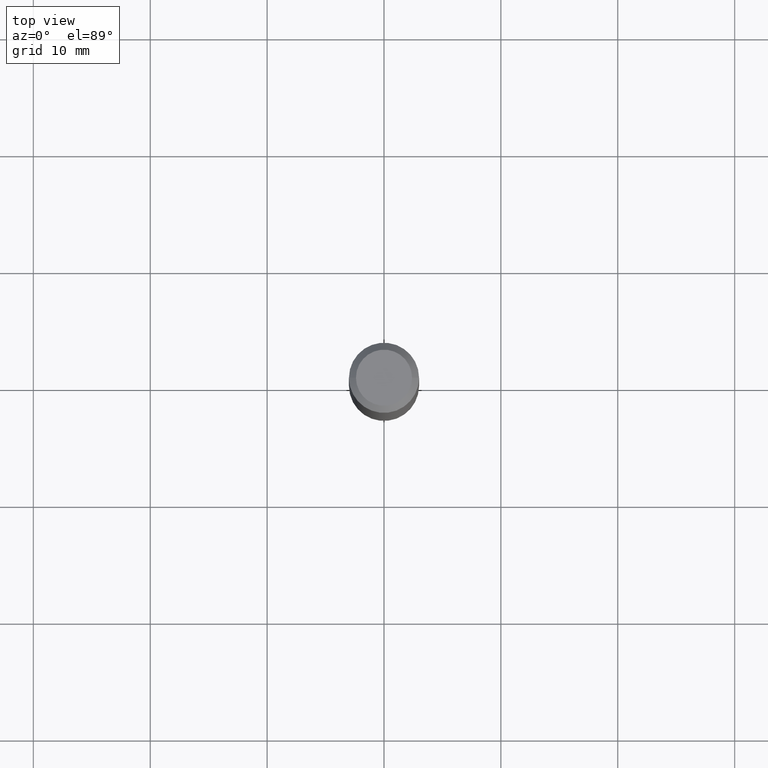
[diagram: clean part render]
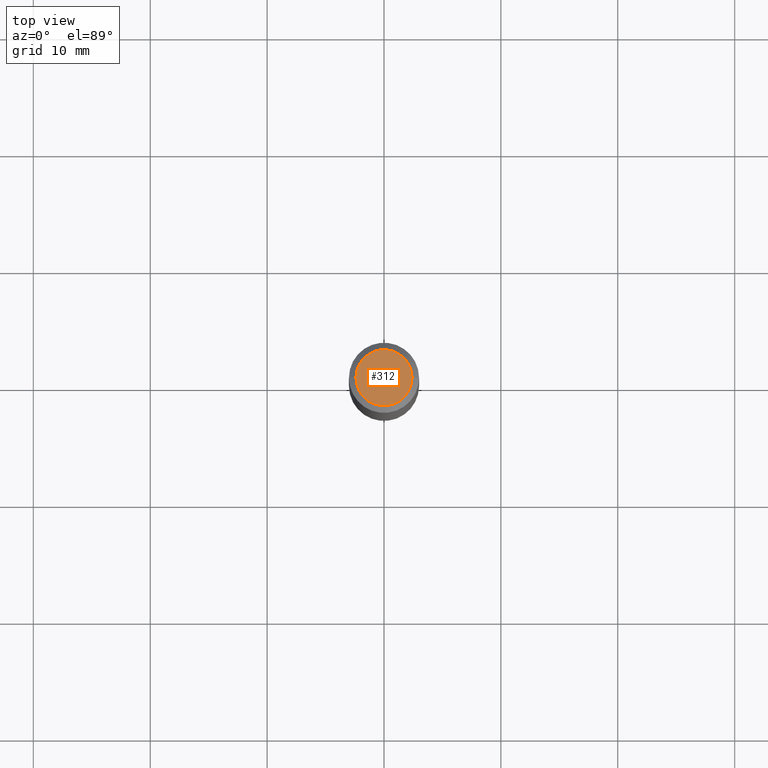
[diagram: same view with one face highlighted and labeled with its STEP entity id]
A machine part, top view. The second image highlights one B-rep face of the part: STEP entity #312.
In plain terms, the highlighted planar face has unit normal (0, -0, -1).
Its self-contained STEP definition (entity closure, byte-faithful):
#10 = CARTESIAN_POINT ( 'NONE',  ( 0.09447999999999998066, -7.704367267948738690E-16, -2.700101262759583929E-17 ) ) ;
#13 = DIRECTION ( 'NONE',  ( 2.438088387897960049E-29, -3.491481338843145188E-15, -1.000000000000000000 ) ) ;
#45 = CARTESIAN_POINT ( 'NONE',  ( 6.603013411620882309E-46, -9.427353171913646324E-32, -2.700101262760083747E-17 ) ) ;
#58 = AXIS2_PLACEMENT_3D ( 'NONE', #104, #13, #63 ) ;
#61 = ORIENTED_EDGE ( 'NONE', *, *, #260, .T. ) ;
#63 = DIRECTION ( 'NONE',  ( -1.000000000000000000, 6.982962677686265922E-15, -4.876176775795935793E-29 ) ) ;
#104 = CARTESIAN_POINT ( 'NONE',  ( 3.301506705810441154E-46, -4.713676585956823162E-32, -1.350050631380041873E-17 ) ) ;
#111 = CIRCLE ( 'NONE', #222, 0.09447999999999998066 ) ;
#142 = DIRECTION ( 'NONE',  ( 1.000000000000000000, -6.982962677686267499E-15, 4.875432709231658792E-29 ) ) ;
#144 = CARTESIAN_POINT ( 'NONE',  ( -0.09447999999999998066, 7.009847083995354710E-16, -2.700101262760559836E-17 ) ) ;
#161 = DIRECTION ( 'NONE',  ( -2.445468806185136597E-29, 3.491481338843145583E-15, 1.000000000000000000 ) ) ;
#198 = EDGE_LOOP ( 'NONE', ( #266, #61 ) ) ;
#222 = AXIS2_PLACEMENT_3D ( 'NONE', #45, #161, #299 ) ;
#259 = CARTESIAN_POINT ( 'NONE',  ( 6.603013411620882309E-46, -9.427353171913646324E-32, -2.700101262760083747E-17 ) ) ;
#260 = EDGE_CURVE ( 'NONE', #271, #465, #111, .T. ) ;
#266 = ORIENTED_EDGE ( 'NONE', *, *, #489, .T. ) ;
#271 = VERTEX_POINT ( 'NONE', #10 ) ;
#299 = DIRECTION ( 'NONE',  ( 1.000000000000000000, -6.982962677686267499E-15, 4.875432709231658792E-29 ) ) ;
#312 = ADVANCED_FACE ( 'NONE', ( #357 ), #447, .F. ) ;
#357 = FACE_OUTER_BOUND ( 'NONE', #198, .T. ) ;
#380 = DIRECTION ( 'NONE',  ( -2.445468806185136597E-29, 3.491481338843145583E-15, 1.000000000000000000 ) ) ;
#421 = AXIS2_PLACEMENT_3D ( 'NONE', #259, #380, #142 ) ;
#447 = PLANE ( 'NONE',  #58 ) ;
#465 = VERTEX_POINT ( 'NONE', #144 ) ;
#475 = CIRCLE ( 'NONE', #421, 0.09447999999999998066 ) ;
#489 = EDGE_CURVE ( 'NONE', #465, #271, #475, .T. ) ;